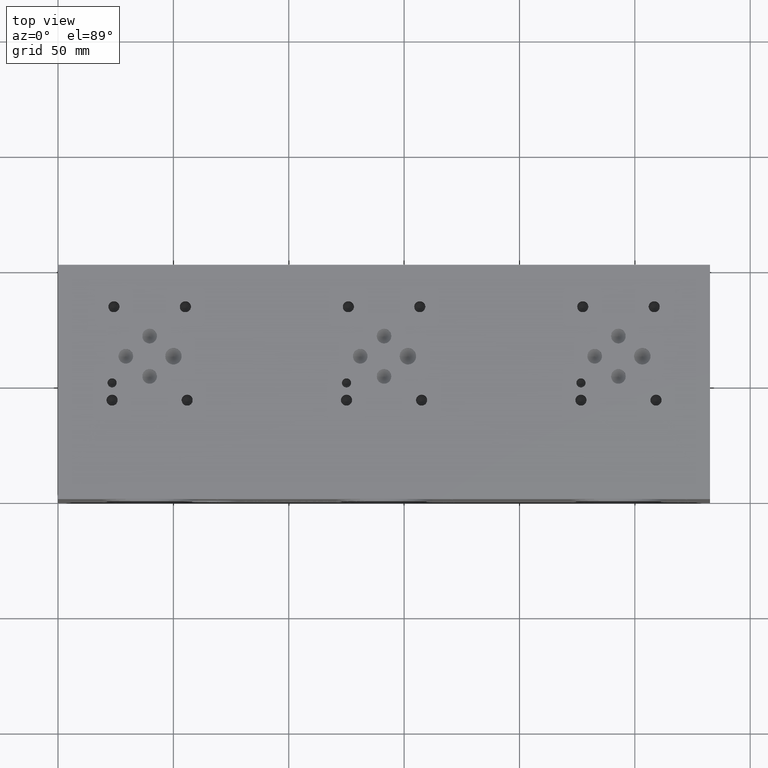
[diagram: clean part render]
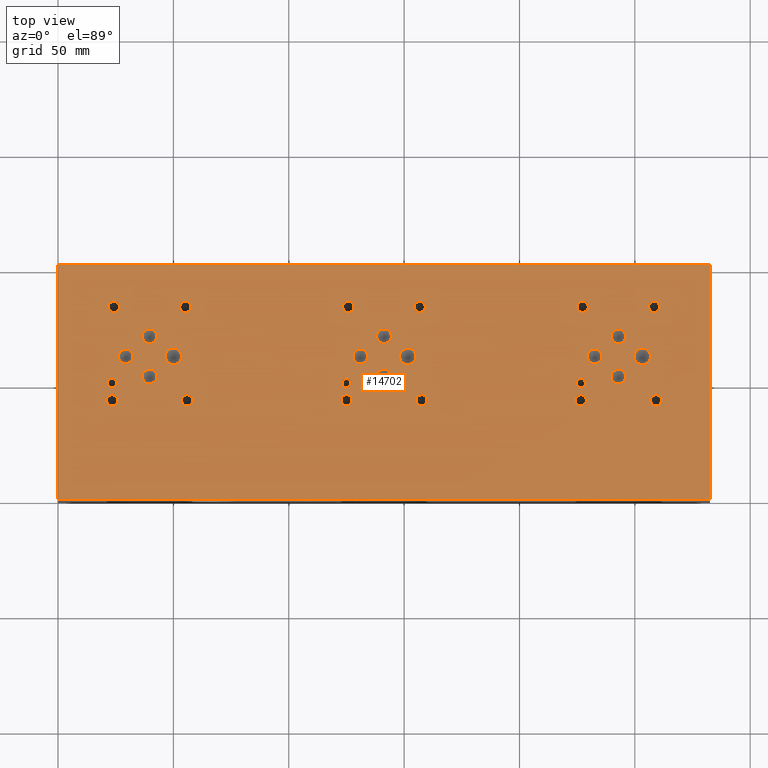
[diagram: same view with one face highlighted and labeled with its STEP entity id]
A machine part, top view. The second image highlights one B-rep face of the part: STEP entity #14702.
In plain terms, the highlighted planar face has unit normal (0, 0, 1).
Its self-contained STEP definition (entity closure, byte-faithful):
#608=CIRCLE('',#15465,3.5687);
#609=CIRCLE('',#15466,3.5687);
#612=CIRCLE('',#15471,3.5687);
#613=CIRCLE('',#15472,3.5687);
#616=CIRCLE('',#15477,3.5687);
#617=CIRCLE('',#15478,3.5687);
#620=CIRCLE('',#15483,3.175);
#621=CIRCLE('',#15484,3.175);
#624=CIRCLE('',#15489,3.175);
#625=CIRCLE('',#15490,3.175);
#628=CIRCLE('',#15495,3.175);
#629=CIRCLE('',#15496,3.175);
#632=CIRCLE('',#15501,3.175);
#633=CIRCLE('',#15502,3.175);
#636=CIRCLE('',#15507,3.175);
#637=CIRCLE('',#15508,3.175);
#640=CIRCLE('',#15513,3.175);
#641=CIRCLE('',#15514,3.175);
#644=CIRCLE('',#15519,3.175);
#645=CIRCLE('',#15520,3.175);
#648=CIRCLE('',#15525,3.175);
#649=CIRCLE('',#15526,3.175);
#652=CIRCLE('',#15531,3.175);
#653=CIRCLE('',#15532,3.175);
#656=CIRCLE('',#15537,1.9812);
#657=CIRCLE('',#15538,1.9812);
#660=CIRCLE('',#15543,1.9812);
#661=CIRCLE('',#15544,1.9812);
#664=CIRCLE('',#15549,1.9812);
#665=CIRCLE('',#15550,1.9812);
#671=CIRCLE('',#15559,2.413);
#672=CIRCLE('',#15560,2.413);
#678=CIRCLE('',#15570,2.413);
#679=CIRCLE('',#15571,2.413);
#685=CIRCLE('',#15581,2.413);
#686=CIRCLE('',#15582,2.413);
#692=CIRCLE('',#15592,2.413);
#693=CIRCLE('',#15593,2.413);
#699=CIRCLE('',#15603,2.413);
#700=CIRCLE('',#15604,2.413);
#706=CIRCLE('',#15614,2.413);
#707=CIRCLE('',#15615,2.413);
#713=CIRCLE('',#15625,2.413);
#714=CIRCLE('',#15626,2.413);
#720=CIRCLE('',#15636,2.413);
#721=CIRCLE('',#15637,2.413);
#727=CIRCLE('',#15647,2.413);
#728=CIRCLE('',#15648,2.413);
#734=CIRCLE('',#15658,2.413);
#735=CIRCLE('',#15659,2.413);
#741=CIRCLE('',#15669,2.413);
#742=CIRCLE('',#15670,2.413);
#748=CIRCLE('',#15680,2.413);
#749=CIRCLE('',#15681,2.413);
#1202=FACE_BOUND('',#2852,.T.);
#1203=FACE_BOUND('',#2853,.T.);
#1204=FACE_BOUND('',#2854,.T.);
#1205=FACE_BOUND('',#2855,.T.);
#1206=FACE_BOUND('',#2856,.T.);
#1207=FACE_BOUND('',#2857,.T.);
#1208=FACE_BOUND('',#2858,.T.);
#1209=FACE_BOUND('',#2859,.T.);
#1210=FACE_BOUND('',#2860,.T.);
#1211=FACE_BOUND('',#2861,.T.);
#1212=FACE_BOUND('',#2862,.T.);
#1213=FACE_BOUND('',#2863,.T.);
#1214=FACE_BOUND('',#2864,.T.);
#1215=FACE_BOUND('',#2865,.T.);
#1216=FACE_BOUND('',#2866,.T.);
#1217=FACE_BOUND('',#2867,.T.);
#1218=FACE_BOUND('',#2868,.T.);
#1219=FACE_BOUND('',#2869,.T.);
#1220=FACE_BOUND('',#2870,.T.);
#1221=FACE_BOUND('',#2871,.T.);
#1222=FACE_BOUND('',#2872,.T.);
#1223=FACE_BOUND('',#2873,.T.);
#1224=FACE_BOUND('',#2874,.T.);
#1225=FACE_BOUND('',#2875,.T.);
#1226=FACE_BOUND('',#2876,.T.);
#1227=FACE_BOUND('',#2877,.T.);
#1228=FACE_BOUND('',#2878,.T.);
#1987=FACE_OUTER_BOUND('',#2851,.T.);
#2851=EDGE_LOOP('',(#12953,#12954,#12955,#12956));
#2852=EDGE_LOOP('',(#12957,#12958));
#2853=EDGE_LOOP('',(#12959,#12960));
#2854=EDGE_LOOP('',(#12961,#12962));
#2855=EDGE_LOOP('',(#12963,#12964));
#2856=EDGE_LOOP('',(#12965,#12966));
#2857=EDGE_LOOP('',(#12967,#12968));
#2858=EDGE_LOOP('',(#12969,#12970));
#2859=EDGE_LOOP('',(#12971,#12972));
#2860=EDGE_LOOP('',(#12973,#12974));
#2861=EDGE_LOOP('',(#12975,#12976));
#2862=EDGE_LOOP('',(#12977,#12978));
#2863=EDGE_LOOP('',(#12979,#12980));
#2864=EDGE_LOOP('',(#12981,#12982));
#2865=EDGE_LOOP('',(#12983,#12984));
#2866=EDGE_LOOP('',(#12985,#12986));
#2867=EDGE_LOOP('',(#12987,#12988));
#2868=EDGE_LOOP('',(#12989,#12990));
#2869=EDGE_LOOP('',(#12991,#12992));
#2870=EDGE_LOOP('',(#12993,#12994));
#2871=EDGE_LOOP('',(#12995,#12996));
#2872=EDGE_LOOP('',(#12997,#12998));
#2873=EDGE_LOOP('',(#12999,#13000));
#2874=EDGE_LOOP('',(#13001,#13002));
#2875=EDGE_LOOP('',(#13003,#13004));
#2876=EDGE_LOOP('',(#13005,#13006));
#2877=EDGE_LOOP('',(#13007,#13008));
#2878=EDGE_LOOP('',(#13009,#13010));
#2915=LINE('',#19013,#4220);
#3270=LINE('',#20799,#4575);
#3328=LINE('',#21070,#4633);
#4184=LINE('',#25405,#5489);
#4220=VECTOR('',#15752,10.);
#4575=VECTOR('',#16223,10.);
#4633=VECTOR('',#16335,10.);
#5489=VECTOR('',#18929,10.);
#5514=VERTEX_POINT('',#19010);
#5515=VERTEX_POINT('',#19012);
#5968=VERTEX_POINT('',#20797);
#6026=VERTEX_POINT('',#21069);
#6733=VERTEX_POINT('',#24951);
#6734=VERTEX_POINT('',#24952);
#6738=VERTEX_POINT('',#24964);
#6739=VERTEX_POINT('',#24965);
#6743=VERTEX_POINT('',#24977);
#6744=VERTEX_POINT('',#24978);
#6748=VERTEX_POINT('',#24990);
#6749=VERTEX_POINT('',#24991);
#6753=VERTEX_POINT('',#25003);
#6754=VERTEX_POINT('',#25004);
#6758=VERTEX_POINT('',#25016);
#6759=VERTEX_POINT('',#25017);
#6763=VERTEX_POINT('',#25029);
#6764=VERTEX_POINT('',#25030);
#6768=VERTEX_POINT('',#25042);
#6769=VERTEX_POINT('',#25043);
#6773=VERTEX_POINT('',#25055);
#6774=VERTEX_POINT('',#25056);
#6778=VERTEX_POINT('',#25068);
#6779=VERTEX_POINT('',#25069);
#6783=VERTEX_POINT('',#25081);
#6784=VERTEX_POINT('',#25082);
#6788=VERTEX_POINT('',#25094);
#6789=VERTEX_POINT('',#25095);
#6793=VERTEX_POINT('',#25107);
#6794=VERTEX_POINT('',#25108);
#6798=VERTEX_POINT('',#25120);
#6799=VERTEX_POINT('',#25121);
#6803=VERTEX_POINT('',#25133);
#6804=VERTEX_POINT('',#25134);
#6811=VERTEX_POINT('',#25153);
#6812=VERTEX_POINT('',#25154);
#6819=VERTEX_POINT('',#25175);
#6820=VERTEX_POINT('',#25176);
#6827=VERTEX_POINT('',#25197);
#6828=VERTEX_POINT('',#25198);
#6835=VERTEX_POINT('',#25219);
#6836=VERTEX_POINT('',#25220);
#6843=VERTEX_POINT('',#25241);
#6844=VERTEX_POINT('',#25242);
#6851=VERTEX_POINT('',#25263);
#6852=VERTEX_POINT('',#25264);
#6859=VERTEX_POINT('',#25285);
#6860=VERTEX_POINT('',#25286);
#6867=VERTEX_POINT('',#25307);
#6868=VERTEX_POINT('',#25308);
#6875=VERTEX_POINT('',#25329);
#6876=VERTEX_POINT('',#25330);
#6883=VERTEX_POINT('',#25351);
#6884=VERTEX_POINT('',#25352);
#6891=VERTEX_POINT('',#25373);
#6892=VERTEX_POINT('',#25374);
#6899=VERTEX_POINT('',#25395);
#6900=VERTEX_POINT('',#25396);
#6936=EDGE_CURVE('',#5515,#5514,#2915,.T.);
#7463=EDGE_CURVE('',#5514,#5968,#3270,.T.);
#7545=EDGE_CURVE('',#6026,#5515,#3328,.T.);
#8730=EDGE_CURVE('',#6733,#6734,#608,.T.);
#8731=EDGE_CURVE('',#6734,#6733,#609,.T.);
#8736=EDGE_CURVE('',#6738,#6739,#612,.T.);
#8737=EDGE_CURVE('',#6739,#6738,#613,.T.);
#8742=EDGE_CURVE('',#6743,#6744,#616,.T.);
#8743=EDGE_CURVE('',#6744,#6743,#617,.T.);
#8748=EDGE_CURVE('',#6748,#6749,#620,.T.);
#8749=EDGE_CURVE('',#6749,#6748,#621,.T.);
#8754=EDGE_CURVE('',#6753,#6754,#624,.T.);
#8755=EDGE_CURVE('',#6754,#6753,#625,.T.);
#8760=EDGE_CURVE('',#6758,#6759,#628,.T.);
#8761=EDGE_CURVE('',#6759,#6758,#629,.T.);
#8766=EDGE_CURVE('',#6763,#6764,#632,.T.);
#8767=EDGE_CURVE('',#6764,#6763,#633,.T.);
#8772=EDGE_CURVE('',#6768,#6769,#636,.T.);
#8773=EDGE_CURVE('',#6769,#6768,#637,.T.);
#8778=EDGE_CURVE('',#6773,#6774,#640,.T.);
#8779=EDGE_CURVE('',#6774,#6773,#641,.T.);
#8784=EDGE_CURVE('',#6778,#6779,#644,.T.);
#8785=EDGE_CURVE('',#6779,#6778,#645,.T.);
#8790=EDGE_CURVE('',#6783,#6784,#648,.T.);
#8791=EDGE_CURVE('',#6784,#6783,#649,.T.);
#8796=EDGE_CURVE('',#6788,#6789,#652,.T.);
#8797=EDGE_CURVE('',#6789,#6788,#653,.T.);
#8802=EDGE_CURVE('',#6793,#6794,#656,.T.);
#8803=EDGE_CURVE('',#6794,#6793,#657,.T.);
#8808=EDGE_CURVE('',#6798,#6799,#660,.T.);
#8809=EDGE_CURVE('',#6799,#6798,#661,.T.);
#8814=EDGE_CURVE('',#6803,#6804,#664,.T.);
#8815=EDGE_CURVE('',#6804,#6803,#665,.T.);
#8823=EDGE_CURVE('',#6811,#6812,#671,.T.);
#8824=EDGE_CURVE('',#6812,#6811,#672,.T.);
#8833=EDGE_CURVE('',#6819,#6820,#678,.T.);
#8834=EDGE_CURVE('',#6820,#6819,#679,.T.);
#8843=EDGE_CURVE('',#6827,#6828,#685,.T.);
#8844=EDGE_CURVE('',#6828,#6827,#686,.T.);
#8853=EDGE_CURVE('',#6835,#6836,#692,.T.);
#8854=EDGE_CURVE('',#6836,#6835,#693,.T.);
#8863=EDGE_CURVE('',#6843,#6844,#699,.T.);
#8864=EDGE_CURVE('',#6844,#6843,#700,.T.);
#8873=EDGE_CURVE('',#6851,#6852,#706,.T.);
#8874=EDGE_CURVE('',#6852,#6851,#707,.T.);
#8883=EDGE_CURVE('',#6859,#6860,#713,.T.);
#8884=EDGE_CURVE('',#6860,#6859,#714,.T.);
#8893=EDGE_CURVE('',#6867,#6868,#720,.T.);
#8894=EDGE_CURVE('',#6868,#6867,#721,.T.);
#8903=EDGE_CURVE('',#6875,#6876,#727,.T.);
#8904=EDGE_CURVE('',#6876,#6875,#728,.T.);
#8913=EDGE_CURVE('',#6883,#6884,#734,.T.);
#8914=EDGE_CURVE('',#6884,#6883,#735,.T.);
#8923=EDGE_CURVE('',#6891,#6892,#741,.T.);
#8924=EDGE_CURVE('',#6892,#6891,#742,.T.);
#8933=EDGE_CURVE('',#6899,#6900,#748,.T.);
#8934=EDGE_CURVE('',#6900,#6899,#749,.T.);
#8938=EDGE_CURVE('',#5968,#6026,#4184,.T.);
#12953=ORIENTED_EDGE('',*,*,#6936,.T.);
#12954=ORIENTED_EDGE('',*,*,#7463,.T.);
#12955=ORIENTED_EDGE('',*,*,#8938,.T.);
#12956=ORIENTED_EDGE('',*,*,#7545,.T.);
#12957=ORIENTED_EDGE('',*,*,#8730,.T.);
#12958=ORIENTED_EDGE('',*,*,#8731,.T.);
#12959=ORIENTED_EDGE('',*,*,#8736,.T.);
#12960=ORIENTED_EDGE('',*,*,#8737,.T.);
#12961=ORIENTED_EDGE('',*,*,#8742,.T.);
#12962=ORIENTED_EDGE('',*,*,#8743,.T.);
#12963=ORIENTED_EDGE('',*,*,#8748,.T.);
#12964=ORIENTED_EDGE('',*,*,#8749,.T.);
#12965=ORIENTED_EDGE('',*,*,#8754,.T.);
#12966=ORIENTED_EDGE('',*,*,#8755,.T.);
#12967=ORIENTED_EDGE('',*,*,#8760,.T.);
#12968=ORIENTED_EDGE('',*,*,#8761,.T.);
#12969=ORIENTED_EDGE('',*,*,#8766,.T.);
#12970=ORIENTED_EDGE('',*,*,#8767,.T.);
#12971=ORIENTED_EDGE('',*,*,#8772,.T.);
#12972=ORIENTED_EDGE('',*,*,#8773,.T.);
#12973=ORIENTED_EDGE('',*,*,#8778,.T.);
#12974=ORIENTED_EDGE('',*,*,#8779,.T.);
#12975=ORIENTED_EDGE('',*,*,#8784,.T.);
#12976=ORIENTED_EDGE('',*,*,#8785,.T.);
#12977=ORIENTED_EDGE('',*,*,#8790,.T.);
#12978=ORIENTED_EDGE('',*,*,#8791,.T.);
#12979=ORIENTED_EDGE('',*,*,#8796,.T.);
#12980=ORIENTED_EDGE('',*,*,#8797,.T.);
#12981=ORIENTED_EDGE('',*,*,#8802,.T.);
#12982=ORIENTED_EDGE('',*,*,#8803,.T.);
#12983=ORIENTED_EDGE('',*,*,#8808,.T.);
#12984=ORIENTED_EDGE('',*,*,#8809,.T.);
#12985=ORIENTED_EDGE('',*,*,#8814,.T.);
#12986=ORIENTED_EDGE('',*,*,#8815,.T.);
#12987=ORIENTED_EDGE('',*,*,#8823,.T.);
#12988=ORIENTED_EDGE('',*,*,#8824,.T.);
#12989=ORIENTED_EDGE('',*,*,#8833,.T.);
#12990=ORIENTED_EDGE('',*,*,#8834,.T.);
#12991=ORIENTED_EDGE('',*,*,#8843,.T.);
#12992=ORIENTED_EDGE('',*,*,#8844,.T.);
#12993=ORIENTED_EDGE('',*,*,#8853,.T.);
#12994=ORIENTED_EDGE('',*,*,#8854,.T.);
#12995=ORIENTED_EDGE('',*,*,#8863,.T.);
#12996=ORIENTED_EDGE('',*,*,#8864,.T.);
#12997=ORIENTED_EDGE('',*,*,#8873,.T.);
#12998=ORIENTED_EDGE('',*,*,#8874,.T.);
#12999=ORIENTED_EDGE('',*,*,#8883,.T.);
#13000=ORIENTED_EDGE('',*,*,#8884,.T.);
#13001=ORIENTED_EDGE('',*,*,#8893,.T.);
#13002=ORIENTED_EDGE('',*,*,#8894,.T.);
#13003=ORIENTED_EDGE('',*,*,#8903,.T.);
#13004=ORIENTED_EDGE('',*,*,#8904,.T.);
#13005=ORIENTED_EDGE('',*,*,#8913,.T.);
#13006=ORIENTED_EDGE('',*,*,#8914,.T.);
#13007=ORIENTED_EDGE('',*,*,#8923,.T.);
#13008=ORIENTED_EDGE('',*,*,#8924,.T.);
#13009=ORIENTED_EDGE('',*,*,#8933,.T.);
#13010=ORIENTED_EDGE('',*,*,#8934,.T.);
#13422=PLANE('',#15687);
#14702=ADVANCED_FACE('',(#1987,#1202,#1203,#1204,#1205,#1206,#1207,#1208,
#1209,#1210,#1211,#1212,#1213,#1214,#1215,#1216,#1217,#1218,#1219,#1220,
#1221,#1222,#1223,#1224,#1225,#1226,#1227,#1228),#13422,.T.);
#15465=AXIS2_PLACEMENT_3D('',#24953,#18423,#18424);
#15466=AXIS2_PLACEMENT_3D('',#24954,#18425,#18426);
#15471=AXIS2_PLACEMENT_3D('',#24966,#18437,#18438);
#15472=AXIS2_PLACEMENT_3D('',#24967,#18439,#18440);
#15477=AXIS2_PLACEMENT_3D('',#24979,#18451,#18452);
#15478=AXIS2_PLACEMENT_3D('',#24980,#18453,#18454);
#15483=AXIS2_PLACEMENT_3D('',#24992,#18465,#18466);
#15484=AXIS2_PLACEMENT_3D('',#24993,#18467,#18468);
#15489=AXIS2_PLACEMENT_3D('',#25005,#18479,#18480);
#15490=AXIS2_PLACEMENT_3D('',#25006,#18481,#18482);
#15495=AXIS2_PLACEMENT_3D('',#25018,#18493,#18494);
#15496=AXIS2_PLACEMENT_3D('',#25019,#18495,#18496);
#15501=AXIS2_PLACEMENT_3D('',#25031,#18507,#18508);
#15502=AXIS2_PLACEMENT_3D('',#25032,#18509,#18510);
#15507=AXIS2_PLACEMENT_3D('',#25044,#18521,#18522);
#15508=AXIS2_PLACEMENT_3D('',#25045,#18523,#18524);
#15513=AXIS2_PLACEMENT_3D('',#25057,#18535,#18536);
#15514=AXIS2_PLACEMENT_3D('',#25058,#18537,#18538);
#15519=AXIS2_PLACEMENT_3D('',#25070,#18549,#18550);
#15520=AXIS2_PLACEMENT_3D('',#25071,#18551,#18552);
#15525=AXIS2_PLACEMENT_3D('',#25083,#18563,#18564);
#15526=AXIS2_PLACEMENT_3D('',#25084,#18565,#18566);
#15531=AXIS2_PLACEMENT_3D('',#25096,#18577,#18578);
#15532=AXIS2_PLACEMENT_3D('',#25097,#18579,#18580);
#15537=AXIS2_PLACEMENT_3D('',#25109,#18591,#18592);
#15538=AXIS2_PLACEMENT_3D('',#25110,#18593,#18594);
#15543=AXIS2_PLACEMENT_3D('',#25122,#18605,#18606);
#15544=AXIS2_PLACEMENT_3D('',#25123,#18607,#18608);
#15549=AXIS2_PLACEMENT_3D('',#25135,#18619,#18620);
#15550=AXIS2_PLACEMENT_3D('',#25136,#18621,#18622);
#15559=AXIS2_PLACEMENT_3D('',#25155,#18641,#18642);
#15560=AXIS2_PLACEMENT_3D('',#25156,#18643,#18644);
#15570=AXIS2_PLACEMENT_3D('',#25177,#18666,#18667);
#15571=AXIS2_PLACEMENT_3D('',#25178,#18668,#18669);
#15581=AXIS2_PLACEMENT_3D('',#25199,#18691,#18692);
#15582=AXIS2_PLACEMENT_3D('',#25200,#18693,#18694);
#15592=AXIS2_PLACEMENT_3D('',#25221,#18716,#18717);
#15593=AXIS2_PLACEMENT_3D('',#25222,#18718,#18719);
#15603=AXIS2_PLACEMENT_3D('',#25243,#18741,#18742);
#15604=AXIS2_PLACEMENT_3D('',#25244,#18743,#18744);
#15614=AXIS2_PLACEMENT_3D('',#25265,#18766,#18767);
#15615=AXIS2_PLACEMENT_3D('',#25266,#18768,#18769);
#15625=AXIS2_PLACEMENT_3D('',#25287,#18791,#18792);
#15626=AXIS2_PLACEMENT_3D('',#25288,#18793,#18794);
#15636=AXIS2_PLACEMENT_3D('',#25309,#18816,#18817);
#15637=AXIS2_PLACEMENT_3D('',#25310,#18818,#18819);
#15647=AXIS2_PLACEMENT_3D('',#25331,#18841,#18842);
#15648=AXIS2_PLACEMENT_3D('',#25332,#18843,#18844);
#15658=AXIS2_PLACEMENT_3D('',#25353,#18866,#18867);
#15659=AXIS2_PLACEMENT_3D('',#25354,#18868,#18869);
#15669=AXIS2_PLACEMENT_3D('',#25375,#18891,#18892);
#15670=AXIS2_PLACEMENT_3D('',#25376,#18893,#18894);
#15680=AXIS2_PLACEMENT_3D('',#25397,#18916,#18917);
#15681=AXIS2_PLACEMENT_3D('',#25398,#18918,#18919);
#15687=AXIS2_PLACEMENT_3D('',#25408,#18934,#18935);
#15752=DIRECTION('',(1.,0.,0.));
#16223=DIRECTION('',(0.,1.,0.));
#16335=DIRECTION('',(0.,-1.,0.));
#18423=DIRECTION('center_axis',(0.,0.,-1.));
#18424=DIRECTION('ref_axis',(1.,0.,0.));
#18425=DIRECTION('center_axis',(0.,0.,-1.));
#18426=DIRECTION('ref_axis',(1.,0.,0.));
#18437=DIRECTION('center_axis',(0.,0.,-1.));
#18438=DIRECTION('ref_axis',(1.,0.,0.));
#18439=DIRECTION('center_axis',(0.,0.,-1.));
#18440=DIRECTION('ref_axis',(1.,0.,0.));
#18451=DIRECTION('center_axis',(0.,0.,-1.));
#18452=DIRECTION('ref_axis',(1.,0.,0.));
#18453=DIRECTION('center_axis',(0.,0.,-1.));
#18454=DIRECTION('ref_axis',(1.,0.,0.));
#18465=DIRECTION('center_axis',(0.,0.,-1.));
#18466=DIRECTION('ref_axis',(1.,0.,0.));
#18467=DIRECTION('center_axis',(0.,0.,-1.));
#18468=DIRECTION('ref_axis',(1.,0.,0.));
#18479=DIRECTION('center_axis',(0.,0.,-1.));
#18480=DIRECTION('ref_axis',(1.,0.,0.));
#18481=DIRECTION('center_axis',(0.,0.,-1.));
#18482=DIRECTION('ref_axis',(1.,0.,0.));
#18493=DIRECTION('center_axis',(0.,0.,-1.));
#18494=DIRECTION('ref_axis',(1.,0.,0.));
#18495=DIRECTION('center_axis',(0.,0.,-1.));
#18496=DIRECTION('ref_axis',(1.,0.,0.));
#18507=DIRECTION('center_axis',(0.,0.,-1.));
#18508=DIRECTION('ref_axis',(1.,0.,0.));
#18509=DIRECTION('center_axis',(0.,0.,-1.));
#18510=DIRECTION('ref_axis',(1.,0.,0.));
#18521=DIRECTION('center_axis',(0.,0.,-1.));
#18522=DIRECTION('ref_axis',(1.,0.,0.));
#18523=DIRECTION('center_axis',(0.,0.,-1.));
#18524=DIRECTION('ref_axis',(1.,0.,0.));
#18535=DIRECTION('center_axis',(0.,0.,-1.));
#18536=DIRECTION('ref_axis',(1.,0.,0.));
#18537=DIRECTION('center_axis',(0.,0.,-1.));
#18538=DIRECTION('ref_axis',(1.,0.,0.));
#18549=DIRECTION('center_axis',(0.,0.,-1.));
#18550=DIRECTION('ref_axis',(1.,0.,0.));
#18551=DIRECTION('center_axis',(0.,0.,-1.));
#18552=DIRECTION('ref_axis',(1.,0.,0.));
#18563=DIRECTION('center_axis',(0.,0.,-1.));
#18564=DIRECTION('ref_axis',(1.,0.,0.));
#18565=DIRECTION('center_axis',(0.,0.,-1.));
#18566=DIRECTION('ref_axis',(1.,0.,0.));
#18577=DIRECTION('center_axis',(0.,0.,-1.));
#18578=DIRECTION('ref_axis',(1.,0.,0.));
#18579=DIRECTION('center_axis',(0.,0.,-1.));
#18580=DIRECTION('ref_axis',(1.,0.,0.));
#18591=DIRECTION('center_axis',(0.,0.,-1.));
#18592=DIRECTION('ref_axis',(1.,0.,0.));
#18593=DIRECTION('center_axis',(0.,0.,-1.));
#18594=DIRECTION('ref_axis',(1.,0.,0.));
#18605=DIRECTION('center_axis',(0.,0.,-1.));
#18606=DIRECTION('ref_axis',(1.,0.,0.));
#18607=DIRECTION('center_axis',(0.,0.,-1.));
#18608=DIRECTION('ref_axis',(1.,0.,0.));
#18619=DIRECTION('center_axis',(0.,0.,-1.));
#18620=DIRECTION('ref_axis',(1.,0.,0.));
#18621=DIRECTION('center_axis',(0.,0.,-1.));
#18622=DIRECTION('ref_axis',(1.,0.,0.));
#18641=DIRECTION('center_axis',(0.,0.,-1.));
#18642=DIRECTION('ref_axis',(1.,0.,0.));
#18643=DIRECTION('center_axis',(0.,0.,-1.));
#18644=DIRECTION('ref_axis',(1.,0.,0.));
#18666=DIRECTION('center_axis',(0.,0.,-1.));
#18667=DIRECTION('ref_axis',(1.,0.,0.));
#18668=DIRECTION('center_axis',(0.,0.,-1.));
#18669=DIRECTION('ref_axis',(1.,0.,0.));
#18691=DIRECTION('center_axis',(0.,0.,-1.));
#18692=DIRECTION('ref_axis',(1.,0.,0.));
#18693=DIRECTION('center_axis',(0.,0.,-1.));
#18694=DIRECTION('ref_axis',(1.,0.,0.));
#18716=DIRECTION('center_axis',(0.,0.,-1.));
#18717=DIRECTION('ref_axis',(1.,0.,0.));
#18718=DIRECTION('center_axis',(0.,0.,-1.));
#18719=DIRECTION('ref_axis',(1.,0.,0.));
#18741=DIRECTION('center_axis',(0.,0.,-1.));
#18742=DIRECTION('ref_axis',(1.,0.,0.));
#18743=DIRECTION('center_axis',(0.,0.,-1.));
#18744=DIRECTION('ref_axis',(1.,0.,0.));
#18766=DIRECTION('center_axis',(0.,0.,-1.));
#18767=DIRECTION('ref_axis',(1.,0.,0.));
#18768=DIRECTION('center_axis',(0.,0.,-1.));
#18769=DIRECTION('ref_axis',(1.,0.,0.));
#18791=DIRECTION('center_axis',(0.,0.,-1.));
#18792=DIRECTION('ref_axis',(1.,0.,0.));
#18793=DIRECTION('center_axis',(0.,0.,-1.));
#18794=DIRECTION('ref_axis',(1.,0.,0.));
#18816=DIRECTION('center_axis',(0.,0.,-1.));
#18817=DIRECTION('ref_axis',(1.,0.,0.));
#18818=DIRECTION('center_axis',(0.,0.,-1.));
#18819=DIRECTION('ref_axis',(1.,0.,0.));
#18841=DIRECTION('center_axis',(0.,0.,-1.));
#18842=DIRECTION('ref_axis',(1.,0.,0.));
#18843=DIRECTION('center_axis',(0.,0.,-1.));
#18844=DIRECTION('ref_axis',(1.,0.,0.));
#18866=DIRECTION('center_axis',(0.,0.,-1.));
#18867=DIRECTION('ref_axis',(1.,0.,0.));
#18868=DIRECTION('center_axis',(0.,0.,-1.));
#18869=DIRECTION('ref_axis',(1.,0.,0.));
#18891=DIRECTION('center_axis',(0.,0.,-1.));
#18892=DIRECTION('ref_axis',(1.,0.,0.));
#18893=DIRECTION('center_axis',(0.,0.,-1.));
#18894=DIRECTION('ref_axis',(1.,0.,0.));
#18916=DIRECTION('center_axis',(0.,0.,-1.));
#18917=DIRECTION('ref_axis',(1.,0.,0.));
#18918=DIRECTION('center_axis',(0.,0.,-1.));
#18919=DIRECTION('ref_axis',(1.,0.,0.));
#18929=DIRECTION('',(-1.,0.,0.));
#18934=DIRECTION('center_axis',(0.,0.,1.));
#18935=DIRECTION('ref_axis',(1.,0.,0.));
#19010=CARTESIAN_POINT('',(282.575,0.,101.6));
#19012=CARTESIAN_POINT('',(0.,0.,101.6));
#19013=CARTESIAN_POINT('',(0.,0.,101.6));
#20797=CARTESIAN_POINT('',(282.575,101.6,101.6));
#20799=CARTESIAN_POINT('',(282.575,0.,101.6));
#21069=CARTESIAN_POINT('',(0.,101.6,101.6));
#21070=CARTESIAN_POINT('',(0.,101.6,101.6));
#24951=CARTESIAN_POINT('',(155.1813,61.8998,101.6));
#24952=CARTESIAN_POINT('',(148.0439,61.8998,101.6));
#24953=CARTESIAN_POINT('Origin',(151.6126,61.8998,101.6));
#24954=CARTESIAN_POINT('Origin',(151.6126,61.8998,101.6));
#24964=CARTESIAN_POINT('',(53.5813,61.8998,101.6));
#24965=CARTESIAN_POINT('',(46.4439,61.8998,101.6));
#24966=CARTESIAN_POINT('Origin',(50.0126,61.8998,101.6));
#24967=CARTESIAN_POINT('Origin',(50.0126,61.8998,101.6));
#24977=CARTESIAN_POINT('',(256.7813,61.8998,101.6));
#24978=CARTESIAN_POINT('',(249.6439,61.8998,101.6));
#24979=CARTESIAN_POINT('Origin',(253.2126,61.8998,101.6));
#24980=CARTESIAN_POINT('Origin',(253.2126,61.8998,101.6));
#24990=CARTESIAN_POINT('',(246.0498,70.6374,101.6));
#24991=CARTESIAN_POINT('',(239.6998,70.6374,101.6));
#24992=CARTESIAN_POINT('Origin',(242.8748,70.6374,101.6));
#24993=CARTESIAN_POINT('Origin',(242.8748,70.6374,101.6));
#25003=CARTESIAN_POINT('',(144.4498,53.1622,101.6));
#25004=CARTESIAN_POINT('',(138.0998,53.1622,101.6));
#25005=CARTESIAN_POINT('Origin',(141.2748,53.1622,101.6));
#25006=CARTESIAN_POINT('Origin',(141.2748,53.1622,101.6));
#25016=CARTESIAN_POINT('',(134.1374,61.8998,101.6));
#25017=CARTESIAN_POINT('',(127.7874,61.8998,101.6));
#25018=CARTESIAN_POINT('Origin',(130.9624,61.8998,101.6));
#25019=CARTESIAN_POINT('Origin',(130.9624,61.8998,101.6));
#25029=CARTESIAN_POINT('',(42.8498,70.6374,101.6));
#25030=CARTESIAN_POINT('',(36.4998,70.6374,101.6));
#25031=CARTESIAN_POINT('Origin',(39.6748,70.6374,101.6));
#25032=CARTESIAN_POINT('Origin',(39.6748,70.6374,101.6));
#25042=CARTESIAN_POINT('',(32.5374,61.8998,101.6));
#25043=CARTESIAN_POINT('',(26.1874,61.8998,101.6));
#25044=CARTESIAN_POINT('Origin',(29.3624,61.8998,101.6));
#25045=CARTESIAN_POINT('Origin',(29.3624,61.8998,101.6));
#25055=CARTESIAN_POINT('',(42.8498,53.1622,101.6));
#25056=CARTESIAN_POINT('',(36.4998,53.1622,101.6));
#25057=CARTESIAN_POINT('Origin',(39.6748,53.1622,101.6));
#25058=CARTESIAN_POINT('Origin',(39.6748,53.1622,101.6));
#25068=CARTESIAN_POINT('',(144.4498,70.6374,101.6));
#25069=CARTESIAN_POINT('',(138.0998,70.6374,101.6));
#25070=CARTESIAN_POINT('Origin',(141.2748,70.6374,101.6));
#25071=CARTESIAN_POINT('Origin',(141.2748,70.6374,101.6));
#25081=CARTESIAN_POINT('',(235.7374,61.8998,101.6));
#25082=CARTESIAN_POINT('',(229.3874,61.8998,101.6));
#25083=CARTESIAN_POINT('Origin',(232.5624,61.8998,101.6));
#25084=CARTESIAN_POINT('Origin',(232.5624,61.8998,101.6));
#25094=CARTESIAN_POINT('',(246.0498,53.1622,101.6));
#25095=CARTESIAN_POINT('',(239.6998,53.1622,101.6));
#25096=CARTESIAN_POINT('Origin',(242.8748,53.1622,101.6));
#25097=CARTESIAN_POINT('Origin',(242.8748,53.1622,101.6));
#25107=CARTESIAN_POINT('',(127.,50.3428,101.6));
#25108=CARTESIAN_POINT('',(123.0376,50.3428,101.6));
#25109=CARTESIAN_POINT('Origin',(125.0188,50.3428,101.6));
#25110=CARTESIAN_POINT('Origin',(125.0188,50.3428,101.6));
#25120=CARTESIAN_POINT('',(25.4,50.3428,101.6));
#25121=CARTESIAN_POINT('',(21.4376,50.3428,101.6));
#25122=CARTESIAN_POINT('Origin',(23.4188,50.3428,101.6));
#25123=CARTESIAN_POINT('Origin',(23.4188,50.3428,101.6));
#25133=CARTESIAN_POINT('',(228.6,50.3428,101.6));
#25134=CARTESIAN_POINT('',(224.6376,50.3428,101.6));
#25135=CARTESIAN_POINT('Origin',(226.6188,50.3428,101.6));
#25136=CARTESIAN_POINT('Origin',(226.6188,50.3428,101.6));
#25153=CARTESIAN_POINT('',(261.5692,42.8498,101.6));
#25154=CARTESIAN_POINT('',(256.7432,42.8498,101.6));
#25155=CARTESIAN_POINT('Origin',(259.1562,42.8498,101.6));
#25156=CARTESIAN_POINT('Origin',(259.1562,42.8498,101.6));
#25175=CARTESIAN_POINT('',(229.8192,83.3374,101.6));
#25176=CARTESIAN_POINT('',(224.9932,83.3374,101.6));
#25177=CARTESIAN_POINT('Origin',(227.4062,83.3374,101.6));
#25178=CARTESIAN_POINT('Origin',(227.4062,83.3374,101.6));
#25197=CARTESIAN_POINT('',(159.9692,42.8498,101.6));
#25198=CARTESIAN_POINT('',(155.1432,42.8498,101.6));
#25199=CARTESIAN_POINT('Origin',(157.5562,42.8498,101.6));
#25200=CARTESIAN_POINT('Origin',(157.5562,42.8498,101.6));
#25219=CARTESIAN_POINT('',(128.2192,83.3374,101.6));
#25220=CARTESIAN_POINT('',(123.3932,83.3374,101.6));
#25221=CARTESIAN_POINT('Origin',(125.8062,83.3374,101.6));
#25222=CARTESIAN_POINT('Origin',(125.8062,83.3374,101.6));
#25241=CARTESIAN_POINT('',(58.3692,42.8498,101.6));
#25242=CARTESIAN_POINT('',(53.5432,42.8498,101.6));
#25243=CARTESIAN_POINT('Origin',(55.9562,42.8498,101.6));
#25244=CARTESIAN_POINT('Origin',(55.9562,42.8498,101.6));
#25263=CARTESIAN_POINT('',(26.6192,83.3374,101.6));
#25264=CARTESIAN_POINT('',(21.7932,83.3374,101.6));
#25265=CARTESIAN_POINT('Origin',(24.2062,83.3374,101.6));
#25266=CARTESIAN_POINT('Origin',(24.2062,83.3374,101.6));
#25285=CARTESIAN_POINT('',(57.5818,83.3374,101.6));
#25286=CARTESIAN_POINT('',(52.7558,83.3374,101.6));
#25287=CARTESIAN_POINT('Origin',(55.1688,83.3374,101.6));
#25288=CARTESIAN_POINT('Origin',(55.1688,83.3374,101.6));
#25307=CARTESIAN_POINT('',(25.8318,42.8498,101.6));
#25308=CARTESIAN_POINT('',(21.0058,42.8498,101.6));
#25309=CARTESIAN_POINT('Origin',(23.4188,42.8498,101.6));
#25310=CARTESIAN_POINT('Origin',(23.4188,42.8498,101.6));
#25329=CARTESIAN_POINT('',(159.1818,83.3374,101.6));
#25330=CARTESIAN_POINT('',(154.3558,83.3374,101.6));
#25331=CARTESIAN_POINT('Origin',(156.7688,83.3374,101.6));
#25332=CARTESIAN_POINT('Origin',(156.7688,83.3374,101.6));
#25351=CARTESIAN_POINT('',(127.4318,42.8498,101.6));
#25352=CARTESIAN_POINT('',(122.6058,42.8498,101.6));
#25353=CARTESIAN_POINT('Origin',(125.0188,42.8498,101.6));
#25354=CARTESIAN_POINT('Origin',(125.0188,42.8498,101.6));
#25373=CARTESIAN_POINT('',(260.7818,83.3374,101.6));
#25374=CARTESIAN_POINT('',(255.9558,83.3374,101.6));
#25375=CARTESIAN_POINT('Origin',(258.3688,83.3374,101.6));
#25376=CARTESIAN_POINT('Origin',(258.3688,83.3374,101.6));
#25395=CARTESIAN_POINT('',(229.0318,42.8498,101.6));
#25396=CARTESIAN_POINT('',(224.2058,42.8498,101.6));
#25397=CARTESIAN_POINT('Origin',(226.6188,42.8498,101.6));
#25398=CARTESIAN_POINT('Origin',(226.6188,42.8498,101.6));
#25405=CARTESIAN_POINT('',(282.575,101.6,101.6));
#25408=CARTESIAN_POINT('Origin',(141.2875,50.8,101.6));